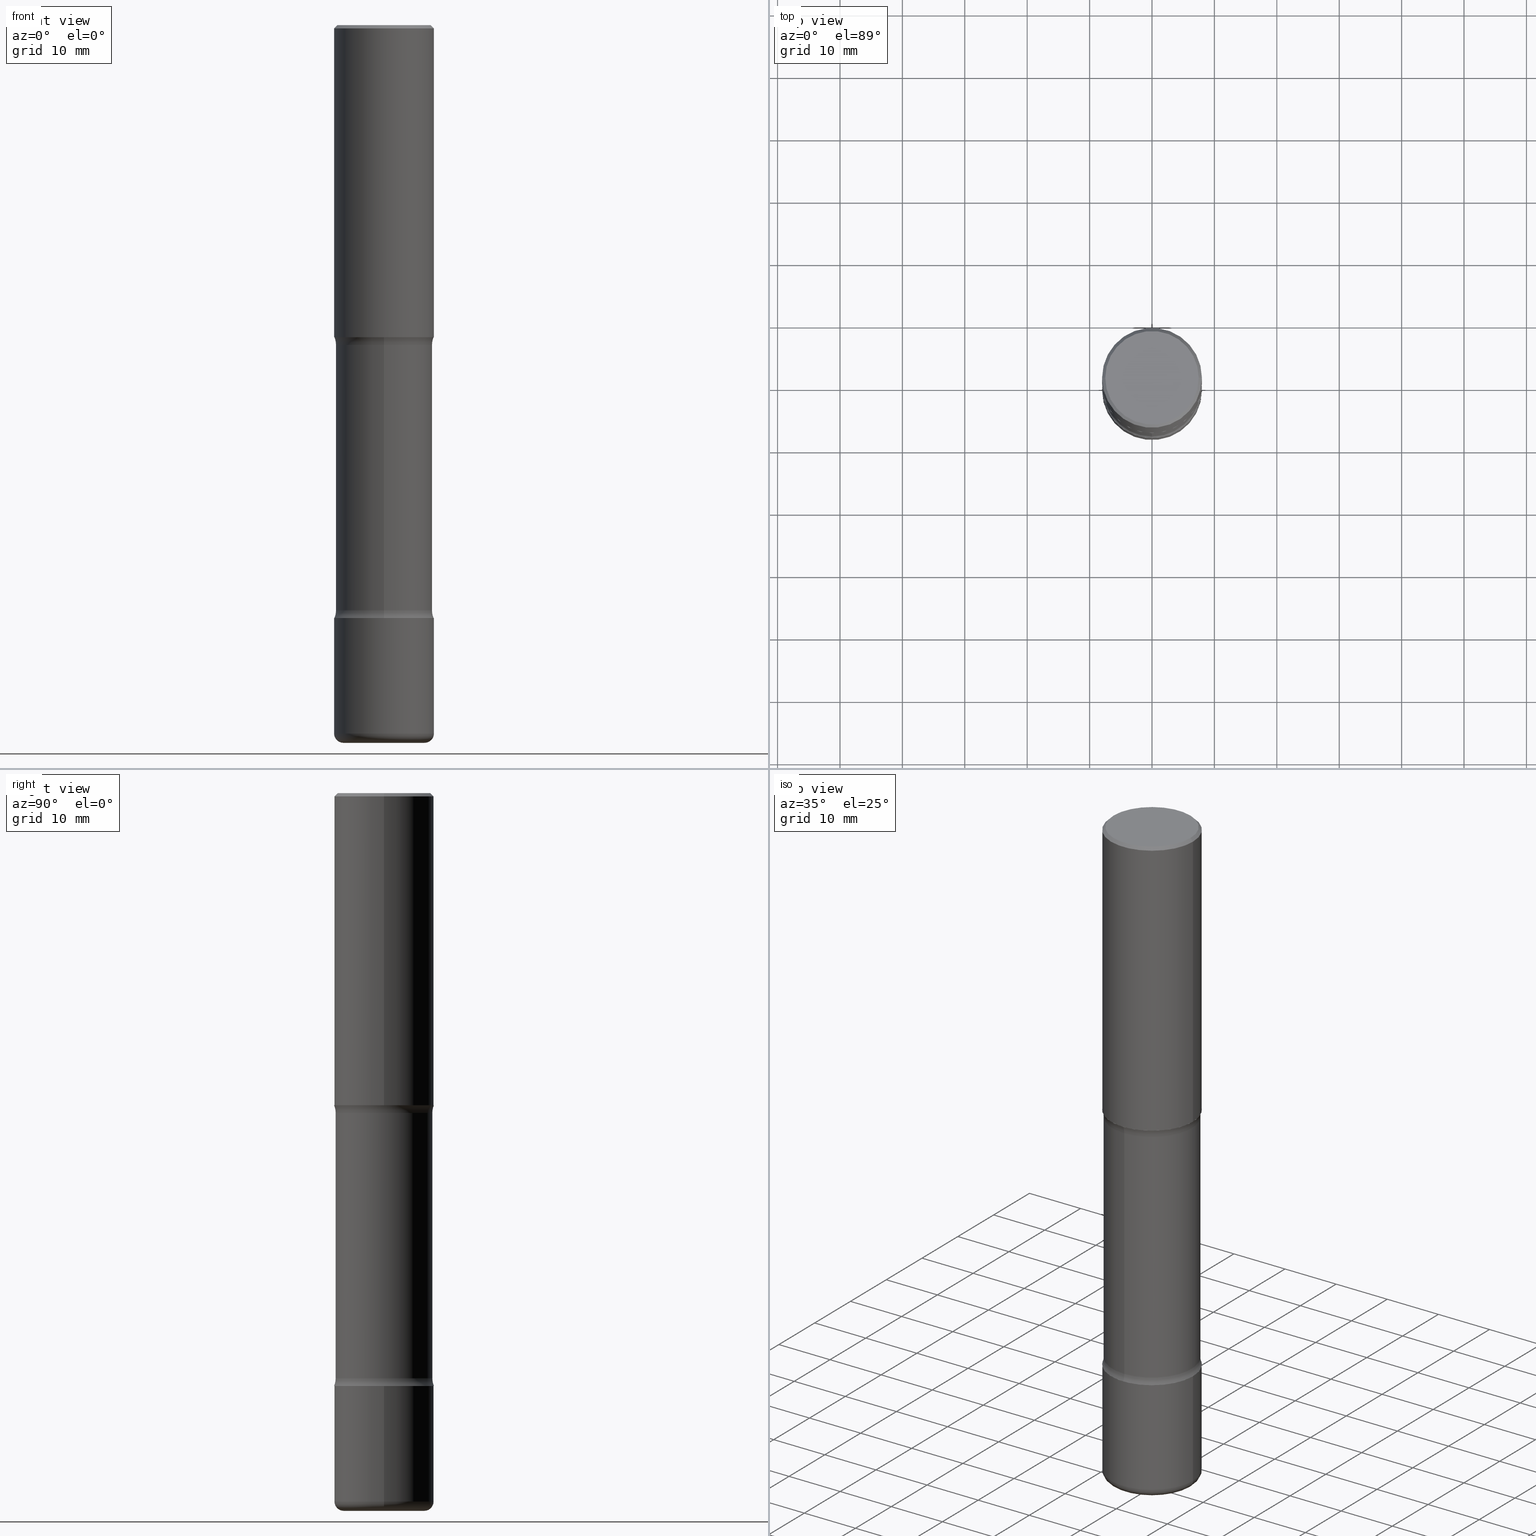
[diagram: canonical four-view strip — front | top / right | iso, engineering-drawing reading convention]
A machine part, canonical four-view strip (front | top / right | iso — engineering-drawing reading convention). The complete STEP part file that produces these views, byte-faithful:
ISO-10303-21;
HEADER;
FILE_DESCRIPTION (( 'STEP AP203' ),
    '1' );
FILE_NAME ('46933.STEP',
    '2024-03-02T05:58:42',
    ( '' ),
    ( '' ),
    'SwSTEP 2.0',
    'SolidWorks 2023',
    '' );
FILE_SCHEMA (( 'CONFIG_CONTROL_DESIGN' ));
ENDSEC;

DATA;
#1 = CARTESIAN_POINT ( 'NONE',  ( 4.820755151858623476E-29, -7.204961388123744804E-15, -2.017372256956273979 ) ) ;
#2 = DIRECTION ( 'NONE',  ( 2.438088387897960049E-29, -3.491481338843145188E-15, -1.000000000000000000 ) ) ;
#3 = ORIENTED_EDGE ( 'NONE', *, *, #345, .F. ) ;
#4 = CARTESIAN_POINT ( 'NONE',  ( 0.3149500000000002853, -2.199284095337291843E-15, 1.535751875536931531E-29 ) ) ;
#5 = CC_DESIGN_PERSON_AND_ORGANIZATION_ASSIGNMENT ( #266, #226, ( #443 ) ) ;
#6 = EDGE_CURVE ( 'NONE', #287, #248, #539, .T. ) ;
#7 = ORIENTED_EDGE ( 'NONE', *, *, #107, .F. ) ;
#8 = DIRECTION ( 'NONE',  ( 6.860497997771532351E-15, 1.000000000000000000, 0.000000000000000000 ) ) ;
#9 = APPROVAL_DATE_TIME ( #93, #177 ) ;
#10 = CIRCLE ( 'NONE', #111, 0.3049999999999999933 ) ;
#11 = AXIS2_PLACEMENT_3D ( 'NONE', #335, #114, #389 ) ;
#12 = ORIENTED_EDGE ( 'NONE', *, *, #459, .T. ) ;
#13 = DIRECTION ( 'NONE',  ( -2.445468806185136597E-29, 3.491481338843145583E-15, 1.000000000000000000 ) ) ;
#14 = CALENDAR_DATE ( 2024, 2, 3 ) ;
#15 = DIRECTION ( 'NONE',  ( 6.982962677686265922E-15, 1.000000000000000000, -3.397830769241806549E-15 ) ) ;
#16 = DIRECTION ( 'NONE',  ( 1.000000000000000000, -6.982962677686273021E-15, 0.000000000000000000 ) ) ;
#17 = LINE ( 'NONE', #493, #454 ) ;
#18 = AXIS2_PLACEMENT_3D ( 'NONE', #25, #491, #238 ) ;
#19 = CARTESIAN_POINT ( 'NONE',  ( 0.2558500000000002439, -1.759462191083226085E-14, -4.527600000000000513 ) ) ;
#20 = FACE_OUTER_BOUND ( 'NONE', #191, .T. ) ;
#21 = DIRECTION ( 'NONE',  ( 2.445468806185136597E-29, -3.491481338843145583E-15, -1.000000000000000000 ) ) ;
#22 = CARTESIAN_POINT ( 'NONE',  ( 9.146542428893648262E-29, -1.305883850354113437E-14, -3.740200000000000191 ) ) ;
#23 = DIRECTION ( 'NONE',  ( 1.000000000000000000, 0.000000000000000000, 0.000000000000000000 ) ) ;
#24 = FACE_OUTER_BOUND ( 'NONE', #168, .T. ) ;
#25 = CARTESIAN_POINT ( 'NONE',  ( 3.002673951405185326E-15, 0.4299999999999871703, -3.691327743043728571 ) ) ;
#26 = CIRCLE ( 'NONE', #429, 0.3149500000000002298 ) ;
#27 = VECTOR ( 'NONE', #387, 39.37007874015748143 ) ;
#28 = ORIENTED_EDGE ( 'NONE', *, *, #469, .F. ) ;
#29 = EDGE_CURVE ( 'NONE', #162, #71, #109, .T. ) ;
#30 = ORIENTED_EDGE ( 'NONE', *, *, #169, .F. ) ;
#31 = PERSON_AND_ORGANIZATION ( #462, #125 ) ;
#32 = ORIENTED_EDGE ( 'NONE', *, *, #469, .T. ) ;
#33 = VECTOR ( 'NONE', #195, 39.37007874015748143 ) ;
#34 = FACE_OUTER_BOUND ( 'NONE', #472, .T. ) ;
#35 = ORIENTED_EDGE ( 'NONE', *, *, #326, .F. ) ;
#36 = CARTESIAN_POINT ( 'NONE',  ( 2.199284095337382168E-15, 0.3149499999999871291, -3.740200000000001079 ) ) ;
#37 = ADVANCED_FACE ( 'NONE', ( #297 ), #135, .F. ) ;
#38 = DIRECTION ( 'NONE',  ( 1.000000000000000000, -6.982962677686267499E-15, 4.876176775795936353E-29 ) ) ;
#39 = APPROVAL_ROLE ( '' ) ;
#40 = EDGE_LOOP ( 'NONE', ( #441, #245 ) ) ;
#41 = VECTOR ( 'NONE', #409, 39.37007874015748143 ) ;
#42 = CYLINDRICAL_SURFACE ( 'NONE', #375, 0.3149500000000002853 ) ;
#43 = AXIS2_PLACEMENT_3D ( 'NONE', #534, #483, #97 ) ;
#44 = ORIENTED_EDGE ( 'NONE', *, *, #206, .F. ) ;
#45 = DIRECTION ( 'NONE',  ( -2.445468806185136597E-29, 3.491481338843145583E-15, 1.000000000000000000 ) ) ;
#46 = ADVANCED_FACE ( 'NONE', ( #319 ), #357, .F. ) ;
#47 = CALENDAR_DATE ( 2024, 2, 3 ) ;
#48 = DIRECTION ( 'NONE',  ( 1.000000000000000000, -6.982962677686265133E-15, 4.883557194083112901E-29 ) ) ;
#49 = ORIENTED_EDGE ( 'NONE', *, *, #364, .T. ) ;
#50 = CARTESIAN_POINT ( 'NONE',  ( 4.890937612370289799E-31, -6.982962677686315028E-17, -0.02000000000000006981 ) ) ;
#51 = DIRECTION ( 'NONE',  ( 1.000000000000000000, -6.982962677686265922E-15, 0.000000000000000000 ) ) ;
#52 = DIRECTION ( 'NONE',  ( -2.445468806185136597E-29, 3.491481338843145583E-15, 1.000000000000000000 ) ) ;
#53 = DIRECTION ( 'NONE',  ( -1.000000000000000000, 7.105427357600997914E-15, 0.000000000000000000 ) ) ;
#54 = APPROVAL_ROLE ( '' ) ;
#55 = AXIS2_PLACEMENT_3D ( 'NONE', #533, #196, #149 ) ;
#56 = CIRCLE ( 'NONE', #488, 0.05910000000000022874 ) ;
#57 = EDGE_LOOP ( 'NONE', ( #264, #543, #503, #247 ) ) ;
#58 =( GEOMETRIC_REPRESENTATION_CONTEXT ( 3 ) GLOBAL_UNCERTAINTY_ASSIGNED_CONTEXT ( ( #500 ) ) GLOBAL_UNIT_ASSIGNED_CONTEXT ( ( #445, #233, #285 ) ) REPRESENTATION_CONTEXT ( 'NONE', 'WORKASPACE' ) );
#59 = CYLINDRICAL_SURFACE ( 'NONE', #43, 0.3049999999999999378 ) ;
#60 = EDGE_CURVE ( 'NONE', #71, #162, #418, .T. ) ;
#61 = FACE_OUTER_BOUND ( 'NONE', #40, .T. ) ;
#62 = CLOSED_SHELL ( 'NONE', ( #324, #72, #246, #356, #108, #37, #89, #549 ) ) ;
#63 = DIRECTION ( 'NONE',  ( -1.000000000000000000, 6.982962677686265922E-15, -4.876176775795935793E-29 ) ) ;
#64 = AXIS2_PLACEMENT_3D ( 'NONE', #523, #512, #510 ) ;
#65 = DIRECTION ( 'NONE',  ( 0.000000000000000000, 0.000000000000000000, 1.000000000000000000 ) ) ;
#66 = DIRECTION ( 'NONE',  ( 2.510864649412157880E-29, -3.397830769241806549E-15, -1.000000000000000000 ) ) ;
#67 = CARTESIAN_POINT ( 'NONE',  ( -0.2558500000000002439, -1.367696866832408364E-14, -4.527600000000000513 ) ) ;
#68 = VERTEX_POINT ( 'NONE', #194 ) ;
#69 = CIRCLE ( 'NONE', #209, 0.2949499999999998789 ) ;
#70 = APPROVAL_PERSON_ORGANIZATION ( #383, #177, #39 ) ;
#71 = VERTEX_POINT ( 'NONE', #19 ) ;
#72 = ADVANCED_FACE ( 'NONE', ( #354 ), #513, .F. ) ;
#73 = ORIENTED_EDGE ( 'NONE', *, *, #508, .F. ) ;
#74 = ORIENTED_EDGE ( 'NONE', *, *, #169, .T. ) ;
#75 = CIRCLE ( 'NONE', #397, 0.3149500000000002298 ) ;
#76 = DIRECTION ( 'NONE',  ( 6.982962677686265922E-15, 1.000000000000000000, -3.397830769241806549E-15 ) ) ;
#77 = LOCAL_TIME ( 0, 58, 42.00000000000000000, #182 ) ;
#78 = EDGE_CURVE ( 'NONE', #212, #112, #186, .T. ) ;
#79 = VERTEX_POINT ( 'NONE', #312 ) ;
#80 = CARTESIAN_POINT ( 'NONE',  ( 4.838038961945526264E-29, -7.180209988345923531E-15, -2.017372256956273979 ) ) ;
#81 = PERSON_AND_ORGANIZATION_ROLE ( 'design_owner' ) ;
#82 = EDGE_CURVE ( 'NONE', #86, #287, #232, .T. ) ;
#83 = EDGE_LOOP ( 'NONE', ( #49, #32, #44, #3 ) ) ;
#84 = DIRECTION ( 'NONE',  ( -2.445468806185136877E-29, 3.491481338843145188E-15, 1.000000000000000000 ) ) ;
#85 = DIRECTION ( 'NONE',  ( -2.445468806185136597E-29, 3.491481338843145583E-15, 1.000000000000000000 ) ) ;
#86 = VERTEX_POINT ( 'NONE', #361 ) ;
#87 = DIRECTION ( 'NONE',  ( 2.510864649412157880E-29, -3.397830769241806549E-15, -1.000000000000000000 ) ) ;
#88 = CIRCLE ( 'NONE', #241, 0.3049999999999999933 ) ;
#89 = ADVANCED_FACE ( 'NONE', ( #151 ), #137, .F. ) ;
#90 = CC_DESIGN_APPROVAL ( #451, ( #315 ) ) ;
#91 = ORIENTED_EDGE ( 'NONE', *, *, #78, .T. ) ;
#92 = DIRECTION ( 'NONE',  ( 2.510864649412157880E-29, -3.397830769241806549E-15, -1.000000000000000000 ) ) ;
#93 = DATE_AND_TIME ( #299, #203 ) ;
#94 = FACE_OUTER_BOUND ( 'NONE', #99, .T. ) ;
#95 = VERTEX_POINT ( 'NONE', #316 ) ;
#96 = EDGE_CURVE ( 'NONE', #212, #460, #26, .T. ) ;
#97 = DIRECTION ( 'NONE',  ( 6.982962677686266711E-15, 1.000000000000000000, -3.582751467100674095E-15 ) ) ;
#98 = DATE_TIME_ROLE ( 'classification_date' ) ;
#99 = EDGE_LOOP ( 'NONE', ( #30, #115, #170, #431 ) ) ;
#100 = EDGE_CURVE ( 'NONE', #460, #175, #150, .T. ) ;
#101 = CIRCLE ( 'NONE', #551, 0.3149499999999998967 ) ;
#102 = ADVANCED_FACE ( 'NONE', ( #61 ), #105, .T. ) ;
#103 = CARTESIAN_POINT ( 'NONE',  ( 0.3149500000000000077, -2.199284095337289871E-15, 1.535751875536930130E-29 ) ) ;
#104 = DIRECTION ( 'NONE',  ( 1.000000000000000000, -6.982962677686269866E-15, 0.000000000000000000 ) ) ;
#105 = PLANE ( 'NONE',  #282 ) ;
#106 = ADVANCED_FACE ( 'NONE', ( #537 ), #505, .T. ) ;
#107 = EDGE_CURVE ( 'NONE', #222, #248, #155, .T. ) ;
#108 = ADVANCED_FACE ( 'NONE', ( #200 ), #366, .F. ) ;
#109 = CIRCLE ( 'NONE', #289, 0.2558500000000002439 ) ;
#110 = DIRECTION ( 'NONE',  ( -6.982962677686265922E-15, -1.000000000000000000, 3.397830769241806549E-15 ) ) ;
#111 = AXIS2_PLACEMENT_3D ( 'NONE', #306, #221, #392 ) ;
#112 = VERTEX_POINT ( 'NONE', #161 ) ;
#113 = CARTESIAN_POINT ( 'NONE',  ( -0.2558500000000002439, -1.378376077317837622E-14, -4.468499999999999694 ) ) ;
#114 = DIRECTION ( 'NONE',  ( 2.510864649412157880E-29, -3.397830769241806549E-15, -1.000000000000000000 ) ) ;
#115 = ORIENTED_EDGE ( 'NONE', *, *, #473, .T. ) ;
#116 = CIRCLE ( 'NONE', #198, 0.3149500000000001743 ) ;
#117 = LOCAL_TIME ( 0, 58, 42.00000000000000000, #484 ) ;
#118 = ORIENTED_EDGE ( 'NONE', *, *, #148, .T. ) ;
#119 = EDGE_LOOP ( 'NONE', ( #434, #393, #301, #545 ) ) ;
#120 = EDGE_CURVE ( 'NONE', #222, #411, #358, .T. ) ;
#121 = DIRECTION ( 'NONE',  ( 2.510864649412157319E-29, -3.397830769241806549E-15, -1.000000000000000000 ) ) ;
#122 = DIRECTION ( 'NONE',  ( 1.000000000000000000, -6.982962677686266711E-15, 4.876176775795936353E-29 ) ) ;
#123 = ORIENTED_EDGE ( 'NONE', *, *, #148, .F. ) ;
#124 = AXIS2_PLACEMENT_3D ( 'NONE', #528, #317, #8 ) ;
#125 = ORGANIZATION ( 'UNSPECIFIED', 'UNSPECIFIED', '' ) ;
#126 = CARTESIAN_POINT ( 'NONE',  ( 2.059624841783563274E-15, 0.2949499999999998789, -1.023409652156634744E-15 ) ) ;
#127 = CARTESIAN_POINT ( 'NONE',  ( 1.107210456688382522E-28, -1.580803090974622705E-14, -4.527600000000000513 ) ) ;
#128 = ADVANCED_FACE ( 'NONE', ( #403 ), #501, .T. ) ;
#129 = FACE_OUTER_BOUND ( 'NONE', #119, .T. ) ;
#130 = CARTESIAN_POINT ( 'NONE',  ( 1.092757736043828165E-28, -1.560168436262059349E-14, -4.468499999999999694 ) ) ;
#131 = DIRECTION ( 'NONE',  ( 1.000000000000000000, -6.982962677686273021E-15, 0.000000000000000000 ) ) ;
#132 = DIRECTION ( 'NONE',  ( -2.445468806185136597E-29, 3.491481338843145583E-15, 1.000000000000000000 ) ) ;
#133 = COORDINATED_UNIVERSAL_TIME_OFFSET ( 5, 0, .BEHIND. ) ;
#134 = FACE_OUTER_BOUND ( 'NONE', #422, .T. ) ;
#135 = PLANE ( 'NONE',  #201 ) ;
#136 = CARTESIAN_POINT ( 'NONE',  ( 0.000000000000000000, 0.000000000000000000, 0.000000000000000000 ) ) ;
#137 = TOROIDAL_SURFACE ( 'NONE', #396, 0.4300000000000000488, 0.1249999999999999861 ) ;
#138 = DIRECTION ( 'NONE',  ( -2.445468806185136597E-29, 3.491481338843145583E-15, 1.000000000000000000 ) ) ;
#139 = PERSON_AND_ORGANIZATION ( #462, #125 ) ;
#140 = CIRCLE ( 'NONE', #337, 0.1249999999999999584 ) ;
#141 = FACE_OUTER_BOUND ( 'NONE', #325, .T. ) ;
#142 = CC_DESIGN_APPROVAL ( #177, ( #443 ) ) ;
#143 = ORIENTED_EDGE ( 'NONE', *, *, #401, .T. ) ;
#144 = DIRECTION ( 'NONE',  ( -6.982962677686267499E-15, -1.000000000000000000, 0.000000000000000000 ) ) ;
#145 = SECURITY_CLASSIFICATION_LEVEL ( 'unclassified' ) ;
#146 = ORIENTED_EDGE ( 'NONE', *, *, #345, .T. ) ;
#147 = CC_DESIGN_PERSON_AND_ORGANIZATION_ASSIGNMENT ( #558, #173, ( #315 ) ) ;
#148 = EDGE_CURVE ( 'NONE', #162, #79, #550, .T. ) ;
#149 = DIRECTION ( 'NONE',  ( 6.860497997771532351E-15, 1.000000000000000000, 0.000000000000000000 ) ) ;
#150 = CIRCLE ( 'NONE', #18, 0.1249999999999999584 ) ;
#151 = FACE_OUTER_BOUND ( 'NONE', #548, .T. ) ;
#152 = DIRECTION ( 'NONE',  ( 1.000000000000000000, -6.982962677686265922E-15, 0.000000000000000000 ) ) ;
#153 = DIRECTION ( 'NONE',  ( 1.000000000000000000, -6.982962677686264344E-15, 0.000000000000000000 ) ) ;
#154 = EDGE_CURVE ( 'NONE', #79, #552, #448, .T. ) ;
#155 = LINE ( 'NONE', #450, #41 ) ;
#156 = CARTESIAN_POINT ( 'NONE',  ( 9.027026849019217051E-29, -1.288820193039115935E-14, -3.691327743043726795 ) ) ;
#157 = VECTOR ( 'NONE', #432, 39.37007874015748143 ) ;
#158 = ORIENTED_EDGE ( 'NONE', *, *, #120, .F. ) ;
#159 = DIRECTION ( 'NONE',  ( -1.000000000000000000, 6.982962677686265922E-15, 0.000000000000000000 ) ) ;
#160 = ORIENTED_EDGE ( 'NONE', *, *, #96, .F. ) ;
#161 = CARTESIAN_POINT ( 'NONE',  ( -2.126582866859139470E-15, -0.3050000000000128719, -3.691327743043725906 ) ) ;
#162 = VERTEX_POINT ( 'NONE', #67 ) ;
#163 = AXIS2_PLACEMENT_3D ( 'NONE', #463, #470, #421 ) ;
#164 = ADVANCED_BREP_SHAPE_REPRESENTATION ( '46933', ( #184, #542, #176, #405 ), #58 ) ;
#165 = VERTEX_POINT ( 'NONE', #263 ) ;
#166 = DIMENSIONAL_EXPONENTS ( 1.000000000000000000, 0.000000000000000000, 0.000000000000000000, 0.000000000000000000, 0.000000000000000000, 0.000000000000000000, 0.000000000000000000 ) ;
#167 = LINE ( 'NONE', #172, #240 ) ;
#168 = EDGE_LOOP ( 'NONE', ( #310, #416, #378, #7 ) ) ;
#169 = EDGE_CURVE ( 'NONE', #165, #68, #10, .T. ) ;
#170 = ORIENTED_EDGE ( 'NONE', *, *, #243, .T. ) ;
#171 = CONICAL_SURFACE ( 'NONE', #419, 0.3149499999999998967, 0.7853981633974460586 ) ;
#172 = CARTESIAN_POINT ( 'NONE',  ( -0.3149500000000002853, 2.237854346276437562E-15, -1.549218606675783797E-29 ) ) ;
#173 = PERSON_AND_ORGANIZATION_ROLE ( 'classification_officer' ) ;
#174 = DIRECTION ( 'NONE',  ( -1.000000000000000000, 6.982962677686265922E-15, -4.876176775795935793E-29 ) ) ;
#175 = VERTEX_POINT ( 'NONE', #283 ) ;
#176 = MANIFOLD_SOLID_BREP ( 'Body-Move/Copy2[4]', #62 ) ;
#177 = APPROVAL ( #532, 'UNSPECIFIED' ) ;
#178 = APPLICATION_PROTOCOL_DEFINITION ( 'international standard', 'config_control_design', 1994, #210 ) ;
#179 = CARTESIAN_POINT ( 'NONE',  ( 4.838038961945526264E-29, -7.180209988345923531E-15, -2.017372256956273979 ) ) ;
#180 = ORIENTED_EDGE ( 'NONE', *, *, #107, .T. ) ;
#181 = DIRECTION ( 'NONE',  ( 6.982962677686266711E-15, 1.000000000000000000, -3.582751467100674095E-15 ) ) ;
#182 = COORDINATED_UNIVERSAL_TIME_OFFSET ( 5, 0, .BEHIND. ) ;
#183 = CARTESIAN_POINT ( 'NONE',  ( -0.3149500000000001743, -1.233550974868359743E-15, -1.968500000000000139 ) ) ;
#184 = MANIFOLD_SOLID_BREP ( 'Body-Move/Copy2[1]', #239 ) ;
#185 = VERTEX_POINT ( 'NONE', #183 ) ;
#186 = CIRCLE ( 'NONE', #55, 0.1249999999999999584 ) ;
#187 = CARTESIAN_POINT ( 'NONE',  ( 3.002673951405142333E-15, 0.4299999999999927769, -2.017372256956275756 ) ) ;
#188 = PERSON_AND_ORGANIZATION ( #462, #125 ) ;
#189 = CIRCLE ( 'NONE', #202, 0.3049999999999999378 ) ;
#190 = CARTESIAN_POINT ( 'NONE',  ( 9.146542428893648262E-29, -1.305883850354113437E-14, -3.740200000000000191 ) ) ;
#191 = EDGE_LOOP ( 'NONE', ( #28, #74, #146, #307 ) ) ;
#192 = CARTESIAN_POINT ( 'NONE',  ( 0.3149500000000003963, -1.780096845795788810E-14, -4.468499999999999694 ) ) ;
#193 = APPROVAL_STATUS ( 'not_yet_approved' ) ;
#194 = CARTESIAN_POINT ( 'NONE',  ( 2.129803616694359388E-15, 0.3049999999999927769, -2.017372256956274867 ) ) ;
#195 = DIRECTION ( 'NONE',  ( 2.510864649412157600E-29, -3.397830769241806549E-15, -1.000000000000000000 ) ) ;
#196 = DIRECTION ( 'NONE',  ( 1.000000000000000000, -6.860497997771530774E-15, 4.841945768327149582E-29 ) ) ;
#197 = VECTOR ( 'NONE', #402, 39.37007874015748143 ) ;
#198 = AXIS2_PLACEMENT_3D ( 'NONE', #298, #45, #291 ) ;
#199 = LOCAL_TIME ( 0, 58, 42.00000000000000000, #304 ) ;
#200 = FACE_OUTER_BOUND ( 'NONE', #323, .T. ) ;
#201 = AXIS2_PLACEMENT_3D ( 'NONE', #260, #276, #110 ) ;
#202 = AXIS2_PLACEMENT_3D ( 'NONE', #234, #228, #536 ) ;
#203 = LOCAL_TIME ( 0, 58, 42.00000000000000000, #133 ) ;
#204 = EDGE_LOOP ( 'NONE', ( #294, #118, #519, #215 ) ) ;
#205 = DIRECTION ( 'NONE',  ( -2.445468806185136597E-29, 3.491481338843145583E-15, 1.000000000000000000 ) ) ;
#206 = EDGE_CURVE ( 'NONE', #175, #112, #514, .T. ) ;
#207 = AXIS2_PLACEMENT_3D ( 'NONE', #318, #205, #349 ) ;
#208 = EDGE_LOOP ( 'NONE', ( #123, #395, #515, #281 ) ) ;
#209 = AXIS2_PLACEMENT_3D ( 'NONE', #465, #303, #338 ) ;
#210 = APPLICATION_CONTEXT ( 'configuration controlled 3d designs of mechanical parts and assemblies' ) ;
#211 = FACE_OUTER_BOUND ( 'NONE', #57, .T. ) ;
#212 = VERTEX_POINT ( 'NONE', #481 ) ;
#213 = LINE ( 'NONE', #379, #33 ) ;
#214 = CARTESIAN_POINT ( 'NONE',  ( 4.698043529530127941E-29, -7.038901729675425288E-15, -1.968500000000000139 ) ) ;
#215 = ORIENTED_EDGE ( 'NONE', *, *, #313, .F. ) ;
#216 = PRODUCT ( '46933', '46933', '', ( #407 ) ) ;
#217 = DIRECTION ( 'NONE',  ( 2.438088387897960049E-29, -3.491481338843145188E-15, -1.000000000000000000 ) ) ;
#218 = ORIENTED_EDGE ( 'NONE', *, *, #82, .F. ) ;
#219 = TOROIDAL_SURFACE ( 'NONE', #410, 0.4299999999999999378, 0.1249999999999999861 ) ;
#220 = CARTESIAN_POINT ( 'NONE',  ( 2.129803616694422103E-15, 0.3049999999999842282, -4.527600000000001401 ) ) ;
#221 = DIRECTION ( 'NONE',  ( 2.510864649412157880E-29, -3.397830769241806549E-15, -1.000000000000000000 ) ) ;
#222 = VERTEX_POINT ( 'NONE', #437 ) ;
#223 = ADVANCED_FACE ( 'NONE', ( #141 ), #258, .F. ) ;
#224 = DIRECTION ( 'NONE',  ( 1.000000000000000000, -6.982962677686268288E-15, 0.000000000000000000 ) ) ;
#225 = ORIENTED_EDGE ( 'NONE', *, *, #120, .T. ) ;
#226 = PERSON_AND_ORGANIZATION_ROLE ( 'creator' ) ;
#227 = VERTEX_POINT ( 'NONE', #433 ) ;
#228 = DIRECTION ( 'NONE',  ( 2.510864649412157880E-29, -3.397830769241806549E-15, -1.000000000000000000 ) ) ;
#229 = DATE_AND_TIME ( #47, #199 ) ;
#230 = AXIS2_PLACEMENT_3D ( 'NONE', #474, #479, #181 ) ;
#231 = CARTESIAN_POINT ( 'NONE',  ( 4.813905344975441835E-29, -6.872981015512731707E-15, -1.968500000000000139 ) ) ;
#232 = LINE ( 'NONE', #103, #197 ) ;
#233 =( NAMED_UNIT ( * ) PLANE_ANGLE_UNIT ( ) SI_UNIT ( $, .RADIAN. ) );
#234 = CARTESIAN_POINT ( 'NONE',  ( 9.023830806565153848E-29, -1.289277884509281722E-14, -3.691327743043726795 ) ) ;
#235 = AXIS2_PLACEMENT_3D ( 'NONE', #535, #66, #15 ) ;
#236 = CIRCLE ( 'NONE', #559, 0.3149500000000003408 ) ;
#237 = DIRECTION ( 'NONE',  ( 1.000000000000000000, -6.982962677686265922E-15, 4.876176775795935793E-29 ) ) ;
#238 = DIRECTION ( 'NONE',  ( -6.982962677686267499E-15, -1.000000000000000000, 0.000000000000000000 ) ) ;
#239 = CLOSED_SHELL ( 'NONE', ( #428, #267, #102, #106, #373, #259 ) ) ;
#240 = VECTOR ( 'NONE', #84, 39.37007874015748143 ) ;
#241 = AXIS2_PLACEMENT_3D ( 'NONE', #1, #87, #262 ) ;
#242 = CC_DESIGN_SECURITY_CLASSIFICATION ( #315, ( #443 ) ) ;
#243 = EDGE_CURVE ( 'NONE', #485, #227, #236, .T. ) ;
#244 = FACE_OUTER_BOUND ( 'NONE', #511, .T. ) ;
#245 = ORIENTED_EDGE ( 'NONE', *, *, #29, .F. ) ;
#246 = ADVANCED_FACE ( 'NONE', ( #94 ), #219, .F. ) ;
#247 = ORIENTED_EDGE ( 'NONE', *, *, #369, .F. ) ;
#248 = VERTEX_POINT ( 'NONE', #394 ) ;
#249 = AXIS2_PLACEMENT_3D ( 'NONE', #190, #85, #502 ) ;
#250 = CYLINDRICAL_SURFACE ( 'NONE', #230, 0.3049999999999999378 ) ;
#251 = EDGE_CURVE ( 'NONE', #95, #522, #328, .T. ) ;
#252 = FACE_OUTER_BOUND ( 'NONE', #83, .T. ) ;
#253 = ORIENTED_EDGE ( 'NONE', *, *, #326, .T. ) ;
#254 = ADVANCED_FACE ( 'NONE', ( #244 ), #171, .T. ) ;
#255 = CC_DESIGN_PERSON_AND_ORGANIZATION_ASSIGNMENT ( #31, #81, ( #216 ) ) ;
#256 = CARTESIAN_POINT ( 'NONE',  ( 0.2558500000000002439, -1.738827536370662730E-14, -4.468499999999999694 ) ) ;
#257 = COORDINATED_UNIVERSAL_TIME_OFFSET ( 5, 0, .BEHIND. ) ;
#258 = PLANE ( 'NONE',  #430 ) ;
#259 = ADVANCED_FACE ( 'NONE', ( #134 ), #340, .F. ) ;
#260 = CARTESIAN_POINT ( 'NONE',  ( 9.146542428893648262E-29, -1.305883850354113437E-14, -3.740200000000000191 ) ) ;
#261 = AXIS2_PLACEMENT_3D ( 'NONE', #80, #295, #76 ) ;
#262 = DIRECTION ( 'NONE',  ( 6.982962677686266711E-15, 1.000000000000000000, -3.582751467100673306E-15 ) ) ;
#263 = CARTESIAN_POINT ( 'NONE',  ( -2.126582866859183647E-15, -0.3050000000000072098, -2.017372256956272647 ) ) ;
#264 = ORIENTED_EDGE ( 'NONE', *, *, #408, .T. ) ;
#265 = CARTESIAN_POINT ( 'NONE',  ( 0.2949499999999998789, -2.127023677808859286E-15, 1.280553747031588939E-17 ) ) ;
#266 = PERSON_AND_ORGANIZATION ( #462, #125 ) ;
#267 = ADVANCED_FACE ( 'NONE', ( #413 ), #275, .T. ) ;
#268 = DIRECTION ( 'NONE',  ( 6.982962677686265922E-15, 1.000000000000000000, -3.397830769241806549E-15 ) ) ;
#269 = ORIENTED_EDGE ( 'NONE', *, *, #82, .T. ) ;
#270 = CARTESIAN_POINT ( 'NONE',  ( -2.160713844398098792E-15, -0.3149500000000073907, -1.968499999999999028 ) ) ;
#271 = PERSON_AND_ORGANIZATION_ROLE ( 'creator' ) ;
#272 = ORIENTED_EDGE ( 'NONE', *, *, #440, .F. ) ;
#273 = CLOSED_SHELL ( 'NONE', ( #458, #305, #254, #223, #46, #128 ) ) ;
#274 = DIRECTION ( 'NONE',  ( 0.7071067811865459074, -7.319954787623249734E-15, -0.7071067811865491270 ) ) ;
#275 = TOROIDAL_SURFACE ( 'NONE', #321, 0.2558500000000002439, 0.05910000000000024956 ) ;
#276 = DIRECTION ( 'NONE',  ( -2.510864649412157319E-29, 3.397830769241806549E-15, 1.000000000000000000 ) ) ;
#277 = CARTESIAN_POINT ( 'NONE',  ( 1.107210456688382522E-28, -1.580803090974622705E-14, -4.527600000000000513 ) ) ;
#278 = AXIS2_PLACEMENT_3D ( 'NONE', #365, #461, #104 ) ;
#279 = TOROIDAL_SURFACE ( 'NONE', #261, 0.4299999999999999378, 0.1249999999999999861 ) ;
#280 = DIRECTION ( 'NONE',  ( -2.445468806185136597E-29, 3.491481338843145583E-15, 1.000000000000000000 ) ) ;
#281 = ORIENTED_EDGE ( 'NONE', *, *, #154, .F. ) ;
#282 = AXIS2_PLACEMENT_3D ( 'NONE', #277, #447, #63 ) ;
#283 = CARTESIAN_POINT ( 'NONE',  ( 2.129803616694401198E-15, 0.3049999999999870592, -3.691327743043728127 ) ) ;
#284 = ORIENTED_EDGE ( 'NONE', *, *, #154, .T. ) ;
#285 =( NAMED_UNIT ( * ) SI_UNIT ( $, .STERADIAN. ) SOLID_ANGLE_UNIT ( ) );
#286 = ORIENTED_EDGE ( 'NONE', *, *, #524, .F. ) ;
#287 = VERTEX_POINT ( 'NONE', #300 ) ;
#288 = DIRECTION ( 'NONE',  ( 1.000000000000000000, -6.982962677686269866E-15, 0.000000000000000000 ) ) ;
#289 = AXIS2_PLACEMENT_3D ( 'NONE', #127, #341, #131 ) ;
#290 = ORIENTED_EDGE ( 'NONE', *, *, #206, .T. ) ;
#291 = DIRECTION ( 'NONE',  ( 1.000000000000000000, -6.982962677686269866E-15, 0.000000000000000000 ) ) ;
#292 = SHAPE_DEFINITION_REPRESENTATION ( #388, #164 ) ;
#293 = DIRECTION ( 'NONE',  ( 2.510864649412157880E-29, -3.397830769241806549E-15, -1.000000000000000000 ) ) ;
#294 = ORIENTED_EDGE ( 'NONE', *, *, #60, .T. ) ;
#295 = DIRECTION ( 'NONE',  ( 2.510864649412157880E-29, -3.397830769241806549E-15, -1.000000000000000000 ) ) ;
#296 = CARTESIAN_POINT ( 'NONE',  ( 9.146542428893648262E-29, -1.305883850354113437E-14, -3.740200000000000191 ) ) ;
#297 = FACE_OUTER_BOUND ( 'NONE', #351, .T. ) ;
#298 = CARTESIAN_POINT ( 'NONE',  ( 4.813905344975441835E-29, -6.872981015512731707E-15, -1.968500000000000139 ) ) ;
#299 = CALENDAR_DATE ( 2024, 2, 3 ) ;
#300 = CARTESIAN_POINT ( 'NONE',  ( 0.3149499999999998967, -2.230543471175006266E-15, -0.02000000000000006981 ) ) ;
#301 = ORIENTED_EDGE ( 'NONE', *, *, #509, .T. ) ;
#302 = EDGE_CURVE ( 'NONE', #522, #95, #75, .T. ) ;
#303 = DIRECTION ( 'NONE',  ( -2.445468806185136597E-29, 3.491481338843145583E-15, 1.000000000000000000 ) ) ;
#304 = COORDINATED_UNIVERSAL_TIME_OFFSET ( 5, 0, .BEHIND. ) ;
#305 = ADVANCED_FACE ( 'NONE', ( #24 ), #449, .T. ) ;
#306 = CARTESIAN_POINT ( 'NONE',  ( 4.820755151858623476E-29, -7.204961388123744804E-15, -2.017372256956273979 ) ) ;
#307 = ORIENTED_EDGE ( 'NONE', *, *, #544, .F. ) ;
#308 = CARTESIAN_POINT ( 'NONE',  ( 4.813905344975441835E-29, -6.872981015512731707E-15, -1.968500000000000139 ) ) ;
#309 = DATE_TIME_ROLE ( 'creation_date' ) ;
#310 = ORIENTED_EDGE ( 'NONE', *, *, #401, .F. ) ;
#311 = DIRECTION ( 'NONE',  ( -1.000000000000000000, 6.982962677686265922E-15, -4.883557194083112901E-29 ) ) ;
#312 = CARTESIAN_POINT ( 'NONE',  ( -0.3149500000000003963, -1.336383001634415593E-14, -4.468499999999999694 ) ) ;
#313 = EDGE_CURVE ( 'NONE', #71, #552, #56, .T. ) ;
#314 = AXIS2_PLACEMENT_3D ( 'NONE', #380, #217, #517 ) ;
#315 = SECURITY_CLASSIFICATION ( '', '', #145 ) ;
#316 = CARTESIAN_POINT ( 'NONE',  ( -0.3149500000000002298, -1.209240708680442637E-14, -3.740200000000000191 ) ) ;
#317 = DIRECTION ( 'NONE',  ( 1.000000000000000000, -6.860497997771530774E-15, 4.841945768327149582E-29 ) ) ;
#318 = CARTESIAN_POINT ( 'NONE',  ( -3.131554243005663153E-46, 4.471029511141347348E-32, 1.280553747030124924E-17 ) ) ;
#319 = FACE_OUTER_BOUND ( 'NONE', #482, .T. ) ;
#320 = CARTESIAN_POINT ( 'NONE',  ( 1.092757736043828165E-28, -1.560168436262059349E-14, -4.468499999999999694 ) ) ;
#321 = AXIS2_PLACEMENT_3D ( 'NONE', #130, #554, #48 ) ;
#322 = DIRECTION ( 'NONE',  ( 2.510864649412157880E-29, -3.397830769241806549E-15, -1.000000000000000000 ) ) ;
#323 = EDGE_LOOP ( 'NONE', ( #272, #414 ) ) ;
#324 = ADVANCED_FACE ( 'NONE', ( #252 ), #250, .T. ) ;
#325 = EDGE_LOOP ( 'NONE', ( #225, #143 ) ) ;
#326 = EDGE_CURVE ( 'NONE', #185, #86, #116, .T. ) ;
#327 = AXIS2_PLACEMENT_3D ( 'NONE', #136, #498, #486 ) ;
#328 = CIRCLE ( 'NONE', #249, 0.3149500000000002298 ) ;
#329 = LOCAL_TIME ( 0, 58, 42.00000000000000000, #257 ) ;
#330 = ORIENTED_EDGE ( 'NONE', *, *, #369, .T. ) ;
#331 = CC_DESIGN_PERSON_AND_ORGANIZATION_ASSIGNMENT ( #398, #271, ( #518 ) ) ;
#332 = CARTESIAN_POINT ( 'NONE',  ( 0.000000000000000000, 0.000000000000000000, 0.000000000000000000 ) ) ;
#333 = EDGE_LOOP ( 'NONE', ( #478, #284, #330, #336 ) ) ;
#334 = CYLINDRICAL_SURFACE ( 'NONE', #64, 0.3149500000000002853 ) ;
#335 = CARTESIAN_POINT ( 'NONE',  ( 9.023830806565153848E-29, -1.289277884509281722E-14, -3.691327743043726795 ) ) ;
#336 = ORIENTED_EDGE ( 'NONE', *, *, #251, .F. ) ;
#337 = AXIS2_PLACEMENT_3D ( 'NONE', #187, #311, #144 ) ;
#338 = DIRECTION ( 'NONE',  ( 1.000000000000000000, -6.982962677686267499E-15, 4.876053491004736589E-29 ) ) ;
#339 = APPROVAL_DATE_TIME ( #353, #451 ) ;
#340 = PLANE ( 'NONE',  #314 ) ;
#341 = DIRECTION ( 'NONE',  ( -2.445468806185136597E-29, 3.491481338843145583E-15, 1.000000000000000000 ) ) ;
#342 = DIRECTION ( 'NONE',  ( -6.982962677686266711E-15, -1.000000000000000000, 3.491481338843145583E-15 ) ) ;
#343 = CARTESIAN_POINT ( 'NONE',  ( 4.890937612370289799E-31, -6.982962677686315028E-17, -0.02000000000000006981 ) ) ;
#344 = DIRECTION ( 'NONE',  ( -2.445468806185136597E-29, 3.491481338843145583E-15, 1.000000000000000000 ) ) ;
#345 = EDGE_CURVE ( 'NONE', #68, #175, #346, .T. ) ;
#346 = LINE ( 'NONE', #220, #27 ) ;
#347 = ORIENTED_EDGE ( 'NONE', *, *, #6, .F. ) ;
#348 = CIRCLE ( 'NONE', #124, 0.1249999999999999584 ) ;
#349 = DIRECTION ( 'NONE',  ( 1.000000000000000000, -6.982962677686267499E-15, 4.876053491004736589E-29 ) ) ;
#350 = APPROVAL_ROLE ( '' ) ;
#351 = EDGE_LOOP ( 'NONE', ( #12, #381 ) ) ;
#352 = CARTESIAN_POINT ( 'NONE',  ( -0.3149500000000000077, 2.237854346276435590E-15, -1.549218606675782676E-29 ) ) ;
#353 = DATE_AND_TIME ( #14, #329 ) ;
#354 = FACE_OUTER_BOUND ( 'NONE', #468, .T. ) ;
#355 = CARTESIAN_POINT ( 'NONE',  ( 0.3149500000000002298, -1.525812259887842581E-14, -3.740200000000000191 ) ) ;
#356 = ADVANCED_FACE ( 'NONE', ( #129 ), #279, .F. ) ;
#357 = PLANE ( 'NONE',  #476 ) ;
#358 = CIRCLE ( 'NONE', #207, 0.2949499999999998789 ) ;
#359 = AXIS2_PLACEMENT_3D ( 'NONE', #399, #21, #159 ) ;
#360 = APPROVAL_PERSON_ORGANIZATION ( #439, #451, #54 ) ;
#361 = CARTESIAN_POINT ( 'NONE',  ( 0.3149500000000001743, -9.072265110850023156E-15, -1.968500000000000139 ) ) ;
#362 = DIRECTION ( 'NONE',  ( -2.445468806185136877E-29, 3.491481338843145188E-15, 1.000000000000000000 ) ) ;
#363 = DIRECTION ( 'NONE',  ( 6.982962677686264344E-15, 1.000000000000000000, -3.469564049740290403E-15 ) ) ;
#364 = EDGE_CURVE ( 'NONE', #68, #165, #88, .T. ) ;
#365 = CARTESIAN_POINT ( 'NONE',  ( 1.092757736043828165E-28, -1.560168436262059349E-14, -4.468499999999999694 ) ) ;
#366 = PLANE ( 'NONE',  #464 ) ;
#367 = CC_DESIGN_DATE_AND_TIME_ASSIGNMENT ( #480, #309, ( #518 ) ) ;
#368 = AXIS2_PLACEMENT_3D ( 'NONE', #427, #423, #288 ) ;
#369 = EDGE_CURVE ( 'NONE', #552, #522, #557, .T. ) ;
#370 = APPROVAL ( #424, 'UNSPECIFIED' ) ;
#371 = DIRECTION ( 'NONE',  ( 6.982962677686265922E-15, 1.000000000000000000, -3.397830769241806549E-15 ) ) ;
#372 = EDGE_LOOP ( 'NONE', ( #73, #253, #269, #555 ) ) ;
#373 = ADVANCED_FACE ( 'NONE', ( #553 ), #334, .T. ) ;
#374 = AXIS2_PLACEMENT_3D ( 'NONE', #113, #417, #53 ) ;
#375 = AXIS2_PLACEMENT_3D ( 'NONE', #520, #138, #38 ) ;
#376 = CC_DESIGN_APPROVAL ( #370, ( #518 ) ) ;
#377 = CYLINDRICAL_SURFACE ( 'NONE', #506, 0.3149500000000000077 ) ;
#378 = ORIENTED_EDGE ( 'NONE', *, *, #6, .T. ) ;
#379 = CARTESIAN_POINT ( 'NONE',  ( -2.092451889320205392E-15, -0.3050000000000157030, -4.527599999999998737 ) ) ;
#380 = CARTESIAN_POINT ( 'NONE',  ( 9.146542428893648262E-29, -1.305883850354113437E-14, -3.740200000000000191 ) ) ;
#381 = ORIENTED_EDGE ( 'NONE', *, *, #96, .T. ) ;
#382 = CARTESIAN_POINT ( 'NONE',  ( 4.698043529530127941E-29, -7.038901729675425288E-15, -1.968500000000000139 ) ) ;
#383 = PERSON_AND_ORGANIZATION ( #462, #125 ) ;
#384 = AXIS2_PLACEMENT_3D ( 'NONE', #438, #344, #51 ) ;
#385 = CIRCLE ( 'NONE', #525, 0.3149500000000003408 ) ;
#386 = ORIENTED_EDGE ( 'NONE', *, *, #302, .T. ) ;
#387 = DIRECTION ( 'NONE',  ( 2.510864649412157600E-29, -3.397830769241806549E-15, -1.000000000000000000 ) ) ;
#388 = PRODUCT_DEFINITION_SHAPE ( 'NONE', 'NONE',  #518 ) ;
#389 = DIRECTION ( 'NONE',  ( 6.982962677686266711E-15, 1.000000000000000000, -3.582751467100674095E-15 ) ) ;
#390 = ORIENTED_EDGE ( 'NONE', *, *, #78, .F. ) ;
#391 = APPROVAL_DATE_TIME ( #229, #370 ) ;
#392 = DIRECTION ( 'NONE',  ( 6.982962677686266711E-15, 1.000000000000000000, -3.582751467100673306E-15 ) ) ;
#393 = ORIENTED_EDGE ( 'NONE', *, *, #364, .F. ) ;
#394 = CARTESIAN_POINT ( 'NONE',  ( -0.3149499999999998967, 2.129454468560425784E-15, -0.02000000000000006981 ) ) ;
#395 = ORIENTED_EDGE ( 'NONE', *, *, #29, .T. ) ;
#396 = AXIS2_PLACEMENT_3D ( 'NONE', #156, #322, #406 ) ;
#397 = AXIS2_PLACEMENT_3D ( 'NONE', #296, #471, #153 ) ;
#398 = PERSON_AND_ORGANIZATION ( #462, #125 ) ;
#399 = CARTESIAN_POINT ( 'NONE',  ( 4.890937612370289799E-31, -6.982962677686315028E-17, -0.02000000000000006981 ) ) ;
#400 = DIRECTION ( 'NONE',  ( -2.438088387897960049E-29, 3.491481338843145188E-15, 1.000000000000000000 ) ) ;
#401 = EDGE_CURVE ( 'NONE', #411, #222, #69, .T. ) ;
#402 = DIRECTION ( 'NONE',  ( -2.445468806185136877E-29, 3.491481338843145188E-15, 1.000000000000000000 ) ) ;
#403 = FACE_OUTER_BOUND ( 'NONE', #372, .T. ) ;
#404 = CIRCLE ( 'NONE', #163, 0.3149500000000002298 ) ;
#405 = AXIS2_PLACEMENT_3D ( 'NONE', #546, #65, #23 ) ;
#406 = DIRECTION ( 'NONE',  ( 6.982962677686265922E-15, 1.000000000000000000, -3.397830769241806549E-15 ) ) ;
#407 = MECHANICAL_CONTEXT ( 'NONE', #415, 'mechanical' ) ;
#408 = EDGE_CURVE ( 'NONE', #552, #79, #540, .T. ) ;
#409 = DIRECTION ( 'NONE',  ( -0.7071067811865459074, 2.468850131082240100E-15, -0.7071067811865491270 ) ) ;
#410 = AXIS2_PLACEMENT_3D ( 'NONE', #179, #455, #268 ) ;
#411 = VERTEX_POINT ( 'NONE', #265 ) ;
#412 = DESIGN_CONTEXT ( 'detailed design', #210, 'design' ) ;
#413 = FACE_OUTER_BOUND ( 'NONE', #204, .T. ) ;
#414 = ORIENTED_EDGE ( 'NONE', *, *, #243, .F. ) ;
#415 = APPLICATION_CONTEXT ( 'configuration controlled 3d designs of mechanical parts and assemblies' ) ;
#416 = ORIENTED_EDGE ( 'NONE', *, *, #541, .T. ) ;
#417 = DIRECTION ( 'NONE',  ( 7.105427357601001859E-15, 1.000000000000000000, -3.491481338843145583E-15 ) ) ;
#418 = CIRCLE ( 'NONE', #453, 0.2558500000000002439 ) ;
#419 = AXIS2_PLACEMENT_3D ( 'NONE', #343, #425, #521 ) ;
#420 = ORIENTED_EDGE ( 'NONE', *, *, #508, .T. ) ;
#421 = DIRECTION ( 'NONE',  ( 6.982962677686264344E-15, 1.000000000000000000, -3.469564049740290403E-15 ) ) ;
#422 = EDGE_LOOP ( 'NONE', ( #386, #530 ) ) ;
#423 = DIRECTION ( 'NONE',  ( -2.445468806185136597E-29, 3.491481338843145583E-15, 1.000000000000000000 ) ) ;
#424 = APPROVAL_STATUS ( 'not_yet_approved' ) ;
#425 = DIRECTION ( 'NONE',  ( 2.445468806185136597E-29, -3.491481338843145583E-15, -1.000000000000000000 ) ) ;
#426 = ORIENTED_EDGE ( 'NONE', *, *, #541, .F. ) ;
#427 = CARTESIAN_POINT ( 'NONE',  ( 1.092757736043828165E-28, -1.560168436262059349E-14, -4.468499999999999694 ) ) ;
#428 = ADVANCED_FACE ( 'NONE', ( #211 ), #42, .T. ) ;
#429 = AXIS2_PLACEMENT_3D ( 'NONE', #22, #494, #363 ) ;
#430 = AXIS2_PLACEMENT_3D ( 'NONE', #126, #2, #174 ) ;
#431 = ORIENTED_EDGE ( 'NONE', *, *, #509, .F. ) ;
#432 = DIRECTION ( 'NONE',  ( -2.445468806185136877E-29, 3.491481338843145188E-15, 1.000000000000000000 ) ) ;
#433 = CARTESIAN_POINT ( 'NONE',  ( 2.199284095337339175E-15, 0.3149499999999932909, -1.968500000000001249 ) ) ;
#434 = ORIENTED_EDGE ( 'NONE', *, *, #473, .F. ) ;
#435 = DIRECTION ( 'NONE',  ( 1.000000000000000000, -6.982962677686269866E-15, 0.000000000000000000 ) ) ;
#436 = CALENDAR_DATE ( 2024, 2, 3 ) ;
#437 = CARTESIAN_POINT ( 'NONE',  ( -0.2949499999999998789, 2.094539655171994924E-15, 1.280553747028672311E-17 ) ) ;
#438 = CARTESIAN_POINT ( 'NONE',  ( 4.890937612370289799E-31, -6.982962677686315028E-17, -0.02000000000000006981 ) ) ;
#439 = PERSON_AND_ORGANIZATION ( #462, #125 ) ;
#440 = EDGE_CURVE ( 'NONE', #227, #485, #385, .T. ) ;
#441 = ORIENTED_EDGE ( 'NONE', *, *, #60, .F. ) ;
#442 = VECTOR ( 'NONE', #362, 39.37007874015748143 ) ;
#443 = PRODUCT_DEFINITION_FORMATION_WITH_SPECIFIED_SOURCE ( 'ANY', '', #216, .NOT_KNOWN. ) ;
#444 = LINE ( 'NONE', #352, #442 ) ;
#445 =( CONVERSION_BASED_UNIT ( 'INCH', #490 ) LENGTH_UNIT ( ) NAMED_UNIT ( #166 ) );
#446 = CARTESIAN_POINT ( 'NONE',  ( 1.107210456688382522E-28, -1.580803090974622705E-14, -4.527600000000000513 ) ) ;
#447 = DIRECTION ( 'NONE',  ( 2.438088387897960049E-29, -3.491481338843145188E-15, -1.000000000000000000 ) ) ;
#448 = CIRCLE ( 'NONE', #278, 0.3149500000000002853 ) ;
#449 = CONICAL_SURFACE ( 'NONE', #359, 0.3149499999999998967, 0.7853981633974460586 ) ;
#450 = CARTESIAN_POINT ( 'NONE',  ( -0.3149499999999998967, 2.129454468560425784E-15, -0.02000000000000006981 ) ) ;
#451 = APPROVAL ( #193, 'UNSPECIFIED' ) ;
#452 = ORIENTED_EDGE ( 'NONE', *, *, #459, .F. ) ;
#453 = AXIS2_PLACEMENT_3D ( 'NONE', #446, #487, #16 ) ;
#454 = VECTOR ( 'NONE', #274, 39.37007874015748143 ) ;
#455 = DIRECTION ( 'NONE',  ( 2.510864649412157880E-29, -3.397830769241806549E-15, -1.000000000000000000 ) ) ;
#456 = ORIENTED_EDGE ( 'NONE', *, *, #544, .T. ) ;
#457 = EDGE_CURVE ( 'NONE', #79, #95, #167, .T. ) ;
#458 = ADVANCED_FACE ( 'NONE', ( #34 ), #377, .T. ) ;
#459 = EDGE_CURVE ( 'NONE', #460, #212, #404, .T. ) ;
#460 = VERTEX_POINT ( 'NONE', #36 ) ;
#461 = DIRECTION ( 'NONE',  ( -2.445468806185136597E-29, 3.491481338843145583E-15, 1.000000000000000000 ) ) ;
#462 = PERSON ( 'UNSPECIFIED', 'UNSPECIFIED', 'UNSPECIFIED', ('UNSPECIFIED'), ('UNSPECIFIED'), ('UNSPECIFIED') ) ;
#463 = CARTESIAN_POINT ( 'NONE',  ( 9.146542428893648262E-29, -1.305883850354113437E-14, -3.740200000000000191 ) ) ;
#464 = AXIS2_PLACEMENT_3D ( 'NONE', #538, #121, #371 ) ;
#465 = CARTESIAN_POINT ( 'NONE',  ( -3.131554243005663153E-46, 4.471029511141347348E-32, 1.280553747030124924E-17 ) ) ;
#466 = DATE_AND_TIME ( #475, #117 ) ;
#467 = DIRECTION ( 'NONE',  ( 6.982962677686265922E-15, 1.000000000000000000, -3.469564049740289220E-15 ) ) ;
#468 = EDGE_LOOP ( 'NONE', ( #160, #91, #456, #499 ) ) ;
#469 = EDGE_CURVE ( 'NONE', #165, #112, #213, .T. ) ;
#470 = DIRECTION ( 'NONE',  ( 2.510864649412157880E-29, -3.397830769241806549E-15, -1.000000000000000000 ) ) ;
#471 = DIRECTION ( 'NONE',  ( -2.445468806185136597E-29, 3.491481338843145583E-15, 1.000000000000000000 ) ) ;
#472 = EDGE_LOOP ( 'NONE', ( #560, #420, #347, #218 ) ) ;
#473 = EDGE_CURVE ( 'NONE', #165, #485, #348, .T. ) ;
#474 = CARTESIAN_POINT ( 'NONE',  ( 1.112359725384078225E-28, -1.573429045124212958E-14, -4.527600000000000513 ) ) ;
#475 = CALENDAR_DATE ( 2024, 2, 3 ) ;
#476 = AXIS2_PLACEMENT_3D ( 'NONE', #231, #400, #237 ) ;
#477 = AXIS2_PLACEMENT_3D ( 'NONE', #308, #13, #435 ) ;
#478 = ORIENTED_EDGE ( 'NONE', *, *, #457, .F. ) ;
#479 = DIRECTION ( 'NONE',  ( 2.510864649412157880E-29, -3.397830769241806549E-15, -1.000000000000000000 ) ) ;
#480 = DATE_AND_TIME ( #436, #77 ) ;
#481 = CARTESIAN_POINT ( 'NONE',  ( -2.160713844398053432E-15, -0.3149500000000131639, -3.740199999999998859 ) ) ;
#482 = EDGE_LOOP ( 'NONE', ( #286, #35 ) ) ;
#483 = DIRECTION ( 'NONE',  ( 2.510864649412157880E-29, -3.397830769241806549E-15, -1.000000000000000000 ) ) ;
#484 = COORDINATED_UNIVERSAL_TIME_OFFSET ( 5, 0, .BEHIND. ) ;
#485 = VERTEX_POINT ( 'NONE', #270 ) ;
#486 = DIRECTION ( 'NONE',  ( 1.000000000000000000, -6.982962677686266711E-15, 4.876176775795936353E-29 ) ) ;
#487 = DIRECTION ( 'NONE',  ( -2.445468806185136597E-29, 3.491481338843145583E-15, 1.000000000000000000 ) ) ;
#488 = AXIS2_PLACEMENT_3D ( 'NONE', #256, #342, #224 ) ;
#489 = APPROVAL_PERSON_ORGANIZATION ( #139, #370, #350 ) ;
#490 = LENGTH_MEASURE_WITH_UNIT ( LENGTH_MEASURE( 0.02539999999999999897 ), #531 );
#491 = DIRECTION ( 'NONE',  ( -1.000000000000000000, 6.982962677686265922E-15, -4.883557194083112901E-29 ) ) ;
#492 = PRODUCT_RELATED_PRODUCT_CATEGORY ( 'detail', '', ( #216 ) ) ;
#493 = CARTESIAN_POINT ( 'NONE',  ( 0.3149499999999998967, -2.230543471175006266E-15, -0.02000000000000006981 ) ) ;
#494 = DIRECTION ( 'NONE',  ( 2.510864649412157880E-29, -3.397830769241806549E-15, -1.000000000000000000 ) ) ;
#495 = DIRECTION ( 'NONE',  ( 1.000000000000000000, -6.982962677686265133E-15, 4.883557194083112901E-29 ) ) ;
#496 = AXIS2_PLACEMENT_3D ( 'NONE', #320, #280, #495 ) ;
#497 = CIRCLE ( 'NONE', #477, 0.3149500000000001743 ) ;
#498 = DIRECTION ( 'NONE',  ( -2.445468806185136597E-29, 3.491481338843145583E-15, 1.000000000000000000 ) ) ;
#499 = ORIENTED_EDGE ( 'NONE', *, *, #100, .F. ) ;
#500 = UNCERTAINTY_MEASURE_WITH_UNIT (LENGTH_MEASURE( 1.000000000000000082E-05 ), #445, 'distance_accuracy_value', 'NONE');
#501 = CYLINDRICAL_SURFACE ( 'NONE', #327, 0.3149500000000000077 ) ;
#502 = DIRECTION ( 'NONE',  ( 1.000000000000000000, -6.982962677686264344E-15, 0.000000000000000000 ) ) ;
#503 = ORIENTED_EDGE ( 'NONE', *, *, #302, .F. ) ;
#504 = APPLICATION_PROTOCOL_DEFINITION ( 'international standard', 'config_control_design', 1994, #415 ) ;
#505 = TOROIDAL_SURFACE ( 'NONE', #496, 0.2558500000000002439, 0.05910000000000024956 ) ;
#506 = AXIS2_PLACEMENT_3D ( 'NONE', #332, #132, #122 ) ;
#507 = ORIENTED_EDGE ( 'NONE', *, *, #547, .T. ) ;
#508 = EDGE_CURVE ( 'NONE', #185, #248, #444, .T. ) ;
#509 = EDGE_CURVE ( 'NONE', #68, #227, #140, .T. ) ;
#510 = DIRECTION ( 'NONE',  ( 1.000000000000000000, -6.982962677686267499E-15, 4.876176775795936353E-29 ) ) ;
#511 = EDGE_LOOP ( 'NONE', ( #426, #158, #180, #507 ) ) ;
#512 = DIRECTION ( 'NONE',  ( -2.445468806185136597E-29, 3.491481338843145583E-15, 1.000000000000000000 ) ) ;
#513 = TOROIDAL_SURFACE ( 'NONE', #235, 0.4300000000000000488, 0.1249999999999999861 ) ;
#514 = CIRCLE ( 'NONE', #11, 0.3049999999999999378 ) ;
#515 = ORIENTED_EDGE ( 'NONE', *, *, #313, .T. ) ;
#516 = DIRECTION ( 'NONE',  ( 6.982962677686265922E-15, 1.000000000000000000, -3.469564049740289220E-15 ) ) ;
#517 = DIRECTION ( 'NONE',  ( -1.000000000000000000, 6.982962677686265922E-15, -4.876176775795935793E-29 ) ) ;
#518 = PRODUCT_DEFINITION ( 'UNKNOWN', '', #443, #412 ) ;
#519 = ORIENTED_EDGE ( 'NONE', *, *, #408, .F. ) ;
#520 = CARTESIAN_POINT ( 'NONE',  ( 0.000000000000000000, 0.000000000000000000, 0.000000000000000000 ) ) ;
#521 = DIRECTION ( 'NONE',  ( -1.000000000000000000, 6.982962677686265922E-15, 0.000000000000000000 ) ) ;
#522 = VERTEX_POINT ( 'NONE', #355 ) ;
#523 = CARTESIAN_POINT ( 'NONE',  ( 0.000000000000000000, 0.000000000000000000, 0.000000000000000000 ) ) ;
#524 = EDGE_CURVE ( 'NONE', #86, #185, #497, .T. ) ;
#525 = AXIS2_PLACEMENT_3D ( 'NONE', #382, #92, #516 ) ;
#526 = CC_DESIGN_PERSON_AND_ORGANIZATION_ASSIGNMENT ( #188, #529, ( #443 ) ) ;
#527 = ORIENTED_EDGE ( 'NONE', *, *, #100, .T. ) ;
#528 = CARTESIAN_POINT ( 'NONE',  ( -2.950014139041709158E-15, -0.4300000000000070988, -2.017372256956272647 ) ) ;
#529 = PERSON_AND_ORGANIZATION_ROLE ( 'design_supplier' ) ;
#530 = ORIENTED_EDGE ( 'NONE', *, *, #251, .T. ) ;
#531 =( LENGTH_UNIT ( ) NAMED_UNIT ( * ) SI_UNIT ( $, .METRE. ) );
#532 = APPROVAL_STATUS ( 'not_yet_approved' ) ;
#533 = CARTESIAN_POINT ( 'NONE',  ( -2.950014139041668531E-15, -0.4300000000000129829, -3.691327743043725018 ) ) ;
#534 = CARTESIAN_POINT ( 'NONE',  ( 1.112359725384078225E-28, -1.573429045124212958E-14, -4.527600000000000513 ) ) ;
#535 = CARTESIAN_POINT ( 'NONE',  ( 9.027026849019217051E-29, -1.288820193039115935E-14, -3.691327743043726795 ) ) ;
#536 = DIRECTION ( 'NONE',  ( 6.982962677686266711E-15, 1.000000000000000000, -3.582751467100674095E-15 ) ) ;
#537 = FACE_OUTER_BOUND ( 'NONE', #208, .T. ) ;
#538 = CARTESIAN_POINT ( 'NONE',  ( 4.813905344975441835E-29, -6.872981015512731707E-15, -1.968500000000000139 ) ) ;
#539 = CIRCLE ( 'NONE', #384, 0.3149499999999998967 ) ;
#540 = CIRCLE ( 'NONE', #368, 0.3149500000000002853 ) ;
#541 = EDGE_CURVE ( 'NONE', #411, #287, #17, .T. ) ;
#542 = MANIFOLD_SOLID_BREP ( 'Body-Move/Copy2[2]', #273 ) ;
#543 = ORIENTED_EDGE ( 'NONE', *, *, #457, .T. ) ;
#544 = EDGE_CURVE ( 'NONE', #112, #175, #189, .T. ) ;
#545 = ORIENTED_EDGE ( 'NONE', *, *, #440, .T. ) ;
#546 = CARTESIAN_POINT ( 'NONE',  ( 0.000000000000000000, 0.000000000000000000, 0.000000000000000000 ) ) ;
#547 = EDGE_CURVE ( 'NONE', #248, #287, #101, .T. ) ;
#548 = EDGE_LOOP ( 'NONE', ( #390, #452, #527, #290 ) ) ;
#549 = ADVANCED_FACE ( 'NONE', ( #20 ), #59, .T. ) ;
#550 = CIRCLE ( 'NONE', #374, 0.05910000000000022874 ) ;
#551 = AXIS2_PLACEMENT_3D ( 'NONE', #50, #52, #152 ) ;
#552 = VERTEX_POINT ( 'NONE', #192 ) ;
#553 = FACE_OUTER_BOUND ( 'NONE', #333, .T. ) ;
#554 = DIRECTION ( 'NONE',  ( -2.445468806185136597E-29, 3.491481338843145583E-15, 1.000000000000000000 ) ) ;
#555 = ORIENTED_EDGE ( 'NONE', *, *, #547, .F. ) ;
#556 = CC_DESIGN_DATE_AND_TIME_ASSIGNMENT ( #466, #98, ( #315 ) ) ;
#557 = LINE ( 'NONE', #4, #157 ) ;
#558 = PERSON_AND_ORGANIZATION ( #462, #125 ) ;
#559 = AXIS2_PLACEMENT_3D ( 'NONE', #214, #293, #467 ) ;
#560 = ORIENTED_EDGE ( 'NONE', *, *, #524, .T. ) ;
ENDSEC;
END-ISO-10303-21;
